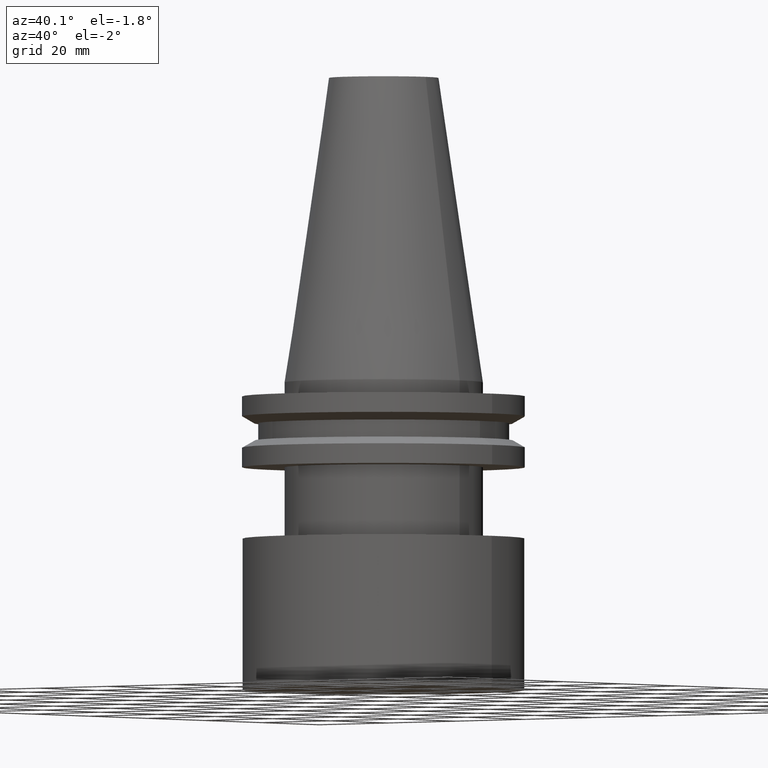
[diagram: clean part render]
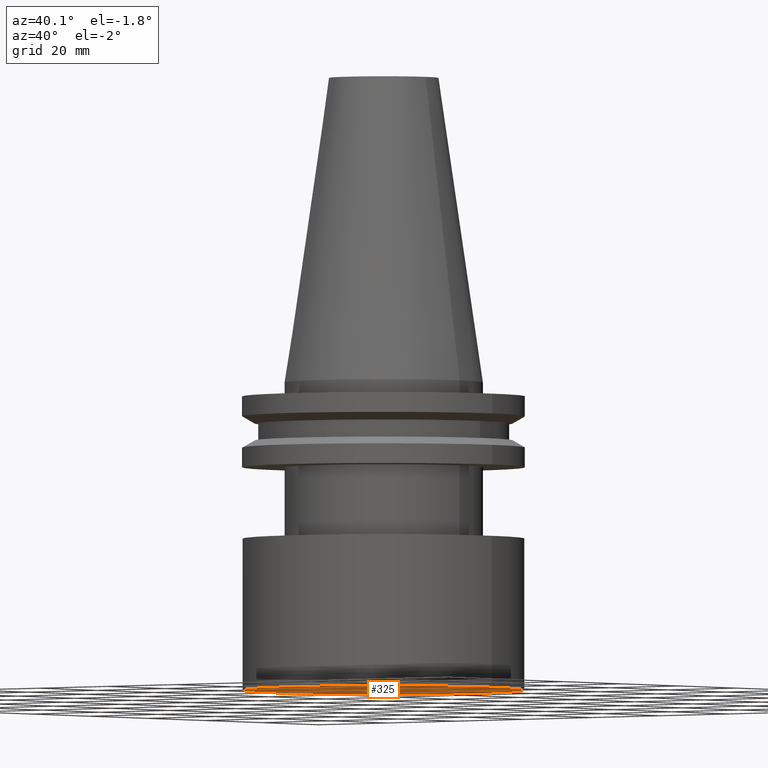
[diagram: same view with one face highlighted and labeled with its STEP entity id]
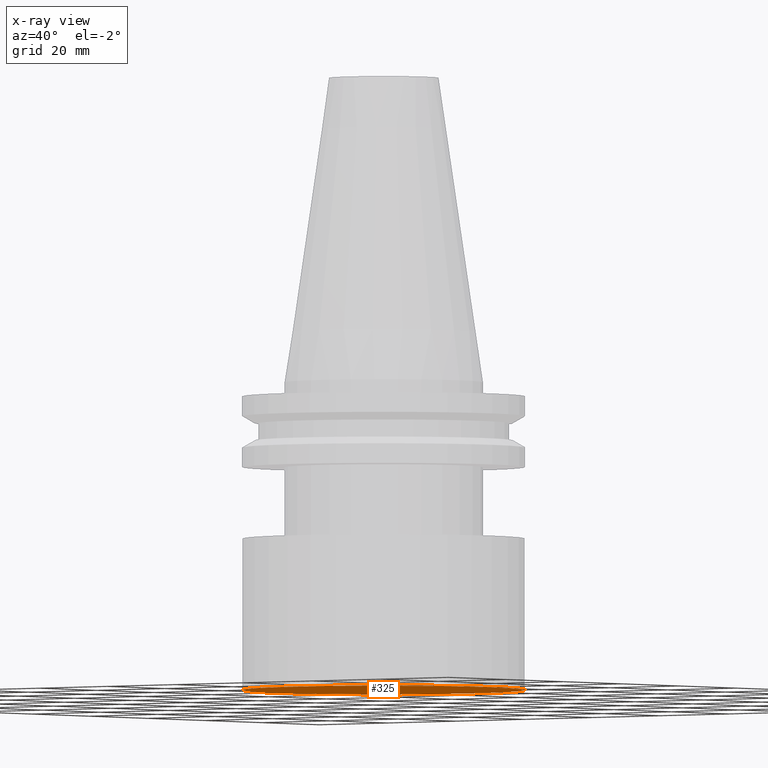
[diagram: x-ray of the same camera — body ghosted, the highlighted face saturated]
A machine part, auxiliary view. The second image highlights one B-rep face of the part: STEP entity #325.
The next image is the same camera in x-ray: the body ghosted, the highlighted face saturated — about 0% of this face is hidden behind the body in this view.
In plain terms, the highlighted planar face has unit normal (0, -0, 1).
Its self-contained STEP definition (entity closure, byte-faithful):
#17 = CIRCLE ( 'NONE', #251, 31.63499999999999801 ) ;
#28 = DIRECTION ( 'NONE',  ( 0.000000000000000000, -0.000000000000000000, 1.000000000000000000 ) ) ;
#30 = ORIENTED_EDGE ( 'NONE', *, *, #262, .F. ) ;
#149 = CARTESIAN_POINT ( 'NONE',  ( 31.63499999999999801, 0.000000000000000000, -69.00000000000000000 ) ) ;
#183 = VERTEX_POINT ( 'NONE', #149 ) ;
#200 = FACE_OUTER_BOUND ( 'NONE', #220, .T. ) ;
#220 = EDGE_LOOP ( 'NONE', ( #30 ) ) ;
#228 = DIRECTION ( 'NONE',  ( -0.000000000000000000, -0.000000000000000000, 1.000000000000000000 ) ) ;
#251 = AXIS2_PLACEMENT_3D ( 'NONE', #255, #228, #383 ) ;
#255 = CARTESIAN_POINT ( 'NONE',  ( 0.000000000000000000, 0.000000000000000000, -69.00000000000000000 ) ) ;
#262 = EDGE_CURVE ( 'NONE', #183, #183, #17, .T. ) ;
#298 = PLANE ( 'NONE',  #323 ) ;
#323 = AXIS2_PLACEMENT_3D ( 'NONE', #326, #28, #353 ) ;
#325 = ADVANCED_FACE ( 'NONE', ( #200 ), #298, .F. ) ;
#326 = CARTESIAN_POINT ( 'NONE',  ( 0.000000000000000000, 31.63499999999999801, -69.00000000000000000 ) ) ;
#353 = DIRECTION ( 'NONE',  ( 1.000000000000000000, 0.000000000000000000, 0.000000000000000000 ) ) ;
#383 = DIRECTION ( 'NONE',  ( 1.000000000000000000, 0.000000000000000000, 0.000000000000000000 ) ) ;